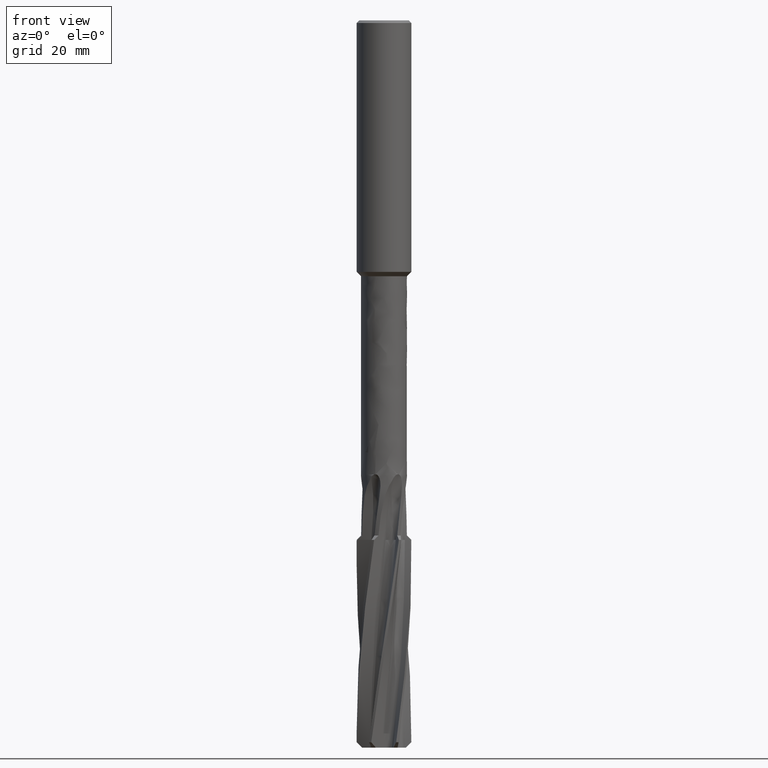
[diagram: clean part render]
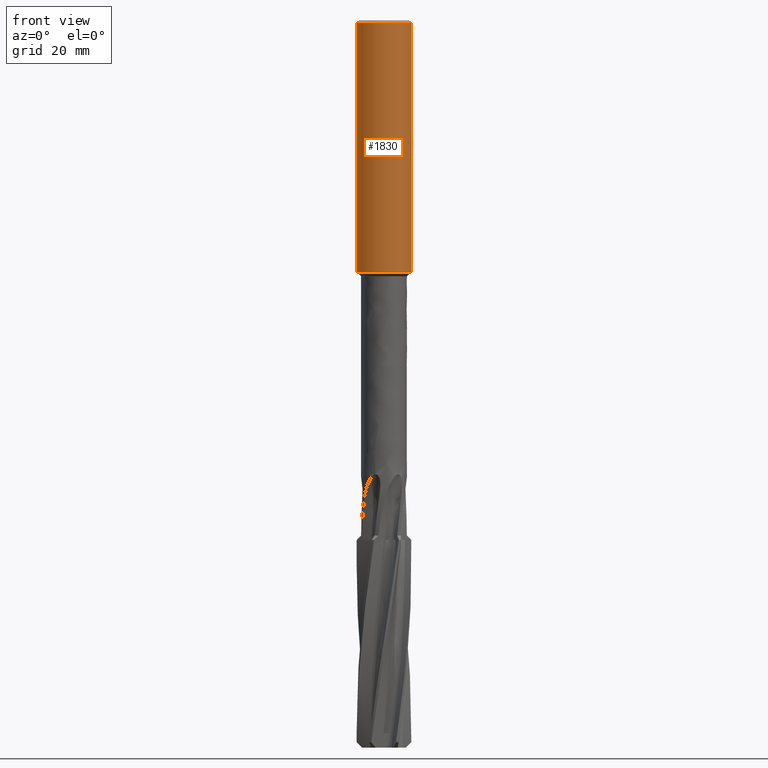
[diagram: same view with one face highlighted and labeled with its STEP entity id]
A machine part, front view. The second image highlights one B-rep face of the part: STEP entity #1830.
In plain terms, the highlighted face is a freeform B-spline surface patch.
Its self-contained STEP definition (entity closure, byte-faithful):
#1740 = VERTEX_POINT('', #1741);
#1741 = CARTESIAN_POINT('', (-5., 3.12284933782575E-15, -46.));
#1747 = EDGE_CURVE('', #1740, #1740, #1748, .T.);
#1748 = CIRCLE('', #1749, 5.);
#1749 = AXIS2_PLACEMENT_3D('', #1750, #1751, #1752);
#1750 = CARTESIAN_POINT('', (1.72472375006114E-31, 2.81668763803891E-15, -46.));
#1751 = DIRECTION('', (3.74939945665464E-33, 6.12323399573677E-17, -1.));
#1752 = DIRECTION('', (-1., 6.12323399573677E-17, 0.));
#1779 = VERTEX_POINT('', #1780);
#1780 = CARTESIAN_POINT('', (-5., 3.36777869765522E-16, -0.5));
#1796 = EDGE_CURVE('', #1779, #1779, #1797, .T.);
#1797 = CIRCLE('', #1798, 5.);
#1798 = AXIS2_PLACEMENT_3D('', #1799, #1800, #1801);
#1799 = CARTESIAN_POINT('', (1.87469972832734E-33, 3.06161699786838E-17, -0.5));
#1800 = DIRECTION('', (3.74939945665464E-33, 6.12323399573677E-17, -1.));
#1801 = DIRECTION('', (-1., 6.12323399573677E-17, 0.));
#1830 = ADVANCED_FACE('', (#1831), #1842, .T.);
#1831 = FACE_OUTER_BOUND('', #1832, .T.);
#1832 = EDGE_LOOP('', (#1833, #1839, #1840, #1841));
#1833 = ORIENTED_EDGE('', *, *, #1834, .T.);
#1834 = EDGE_CURVE('', #1740, #1779, #1835, .T.);
#1835 = LINE('', #1836, #1837);
#1836 = CARTESIAN_POINT('', (-5., 3.12284933782575E-15, -46.));
#1837 = VECTOR('', #1838, 45.5);
#1838 = DIRECTION('', (0., -2.78607146806023E-15, 45.5));
#1839 = ORIENTED_EDGE('', *, *, #1796, .T.);
#1840 = ORIENTED_EDGE('', *, *, #1834, .F.);
#1841 = ORIENTED_EDGE('', *, *, #1747, .F.);
#1842 = (
   BOUNDED_SURFACE ()
   B_SPLINE_SURFACE (1, 2, ((#1843, #1844, #1845, #1846, #1847, #1848, #1849, #1850, #1851), (#1852, #1853, #1854, #1855, #1856, #1857, #1858, #1859, #1860)), .UNSPECIFIED., .F., .T., .U.)
   B_SPLINE_SURFACE_WITH_KNOTS ((2, 2), (3, 2, 2, 2, 3), (0., 1.), (0., 7.85398163397448, 15.707963267949, 23.5619449019235, 31.4159265358979), .UNSPECIFIED.)
   GEOMETRIC_REPRESENTATION_ITEM ()
   RATIONAL_B_SPLINE_SURFACE (((1., 0.707106781186548, 1., 0.707106781186548, 1., 0.707106781186548, 1., 0.707106781186548, 1.), (1., 0.707106781186548, 1., 0.707106781186548, 1., 0.707106781186548, 1., 0.707106781186548, 1.)))
   REPRESENTATION_ITEM ('')
   SURFACE ()
);
#1843 = CARTESIAN_POINT('', (-5., 3.12284933782575E-15, -46.));
#1844 = CARTESIAN_POINT('', (-5., 5., -46.));
#1845 = CARTESIAN_POINT('', (1.4791141972894E-31, 5., -46.));
#1846 = CARTESIAN_POINT('', (5., 5., -46.));
#1847 = CARTESIAN_POINT('', (5., 3.12284933782575E-15, -46.));
#1848 = CARTESIAN_POINT('', (5., -5., -46.));
#1849 = CARTESIAN_POINT('', (6.12323399573677E-16, -5., -46.));
#1850 = CARTESIAN_POINT('', (-5., -5., -46.));
#1851 = CARTESIAN_POINT('', (-5., 3.12284933782575E-15, -46.));
#1852 = CARTESIAN_POINT('', (-5., 3.36777869765522E-16, -0.5));
#1853 = CARTESIAN_POINT('', (-5., 5., -0.5));
#1854 = CARTESIAN_POINT('', (0., 5., -0.5));
#1855 = CARTESIAN_POINT('', (5., 5., -0.5));
#1856 = CARTESIAN_POINT('', (5., 3.36777869765522E-16, -0.5));
#1857 = CARTESIAN_POINT('', (5., -5., -0.5));
#1858 = CARTESIAN_POINT('', (6.12323399573677E-16, -5., -0.5));
#1859 = CARTESIAN_POINT('', (-5., -5., -0.5));
#1860 = CARTESIAN_POINT('', (-5., 3.36777869765522E-16, -0.5));